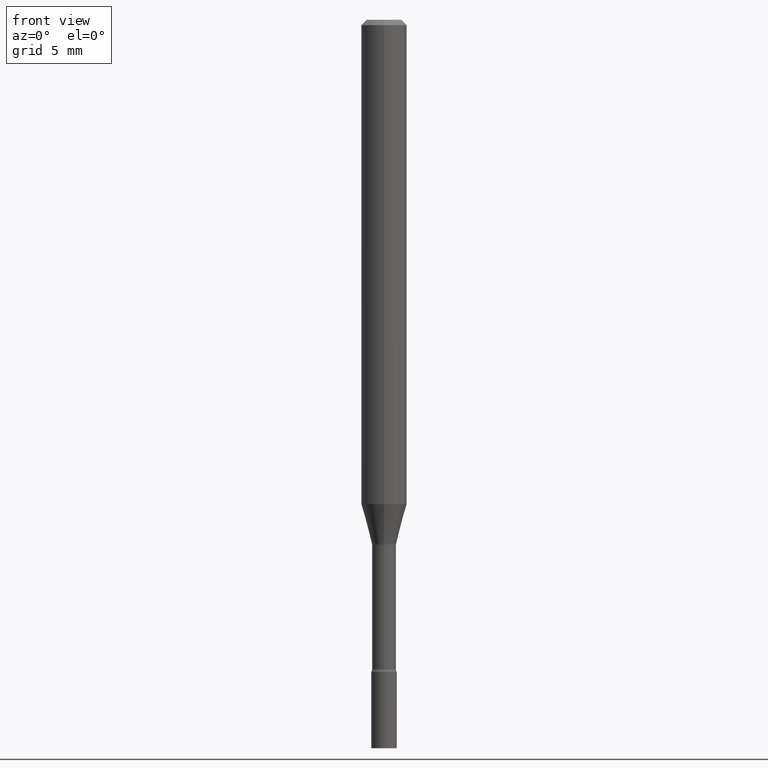
[diagram: clean part render]
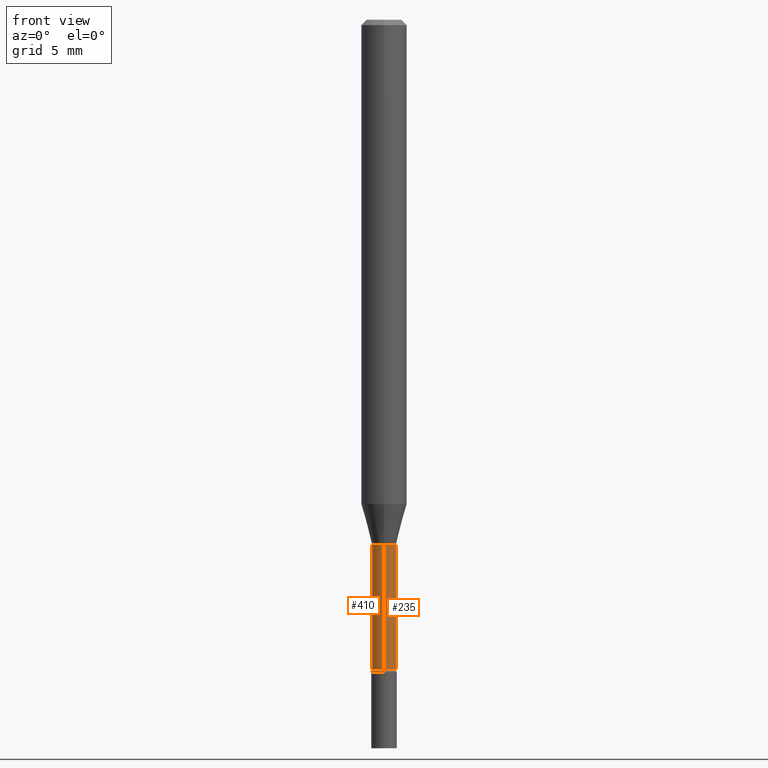
[diagram: same view with one multi-face feature highlighted, each face labeled with its STEP entity id]
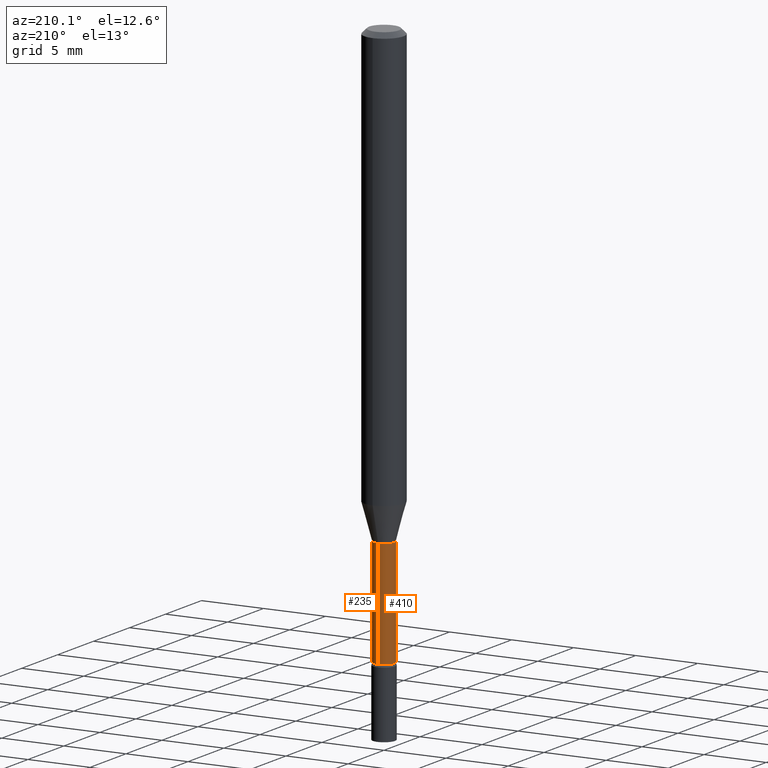
[diagram: same view with one multi-face feature highlighted, each face labeled with its STEP entity id]
A machine part, front view. The highlighted faces form ONE feature: a constant-radius fillet chain: 2 tangent blend faces with common blend radius 0.8357 mm. The faces share edges in the B-rep.
A second angle (auxiliary view) of the same feature is appended — it is thin or edge-on in the first view.
Their STEP definitions:
[1] entity #235 (Cylinder):
#29 = ORIENTED_EDGE ( 'NONE', *, *, #230, .F. ) ;
#49 = AXIS2_PLACEMENT_3D ( 'NONE', #321, #80, #242 ) ;
#76 = DIRECTION ( 'NONE',  ( -2.445497550844091636E-29, 3.491440174855477683E-15, 1.000000000000000000 ) ) ;
#80 = DIRECTION ( 'NONE',  ( -2.445497550844091636E-29, 3.491440174855477289E-15, 1.000000000000000000 ) ) ;
#89 = LINE ( 'NONE', #127, #386 ) ;
#117 = VERTEX_POINT ( 'NONE', #454 ) ;
#123 = ORIENTED_EDGE ( 'NONE', *, *, #206, .T. ) ;
#127 = CARTESIAN_POINT ( 'NONE',  ( 2.337685600650728039E-16, 0.03289999999999998481, -1.148683817527451486E-16 ) ) ;
#133 = CARTESIAN_POINT ( 'NONE',  ( -2.297394720958343216E-16, -0.03290000000000618818, -1.782345589506695971 ) ) ;
#165 = ORIENTED_EDGE ( 'NONE', *, *, #286, .F. ) ;
#168 = ORIENTED_EDGE ( 'NONE', *, *, #249, .T. ) ;
#202 = CARTESIAN_POINT ( 'NONE',  ( 3.526345811121679173E-29, -5.034568704079838244E-15, -1.441974787463810914 ) ) ;
#206 = EDGE_CURVE ( 'NONE', #268, #398, #89, .T. ) ;
#211 = AXIS2_PLACEMENT_3D ( 'NONE', #317, #401, #437 ) ;
#218 = CARTESIAN_POINT ( 'NONE',  ( 2.412292587905978021E-16, 0.03289999999999374675, -1.782345589506695971 ) ) ;
#230 = EDGE_CURVE ( 'NONE', #117, #398, #326, .T. ) ;
#235 = ADVANCED_FACE ( 'NONE', ( #518 ), #239, .T. ) ;
#239 = CYLINDRICAL_SURFACE ( 'NONE', #211, 0.03289999999999998481 ) ;
#242 = DIRECTION ( 'NONE',  ( -6.982962677686265922E-15, -1.000000000000000000, 0.000000000000000000 ) ) ;
#243 = AXIS2_PLACEMENT_3D ( 'NONE', #202, #358, #368 ) ;
#249 = EDGE_CURVE ( 'NONE', #509, #268, #273, .T. ) ;
#268 = VERTEX_POINT ( 'NONE', #218 ) ;
#273 = CIRCLE ( 'NONE', #49, 0.03289999999999996400 ) ;
#275 = CARTESIAN_POINT ( 'NONE',  ( -2.297394720958780541E-16, -0.03289999999999998481, 1.148683817527451486E-16 ) ) ;
#286 = EDGE_CURVE ( 'NONE', #509, #117, #444, .T. ) ;
#317 = CARTESIAN_POINT ( 'NONE',  ( 0.000000000000000000, 0.000000000000000000, 0.000000000000000000 ) ) ;
#321 = CARTESIAN_POINT ( 'NONE',  ( 4.358721773896393938E-29, -6.222952996680146850E-15, -1.782345589506695971 ) ) ;
#326 = CIRCLE ( 'NONE', #243, 0.03289999999999999869 ) ;
#358 = DIRECTION ( 'NONE',  ( -2.445497550844091636E-29, 3.491440174855477289E-15, 1.000000000000000000 ) ) ;
#368 = DIRECTION ( 'NONE',  ( -6.982962677686265133E-15, -1.000000000000000000, 0.000000000000000000 ) ) ;
#386 = VECTOR ( 'NONE', #76, 39.37007874015748143 ) ;
#398 = VERTEX_POINT ( 'NONE', #479 ) ;
#400 = DIRECTION ( 'NONE',  ( -2.445497550844091636E-29, 3.491440174855477683E-15, 1.000000000000000000 ) ) ;
#401 = DIRECTION ( 'NONE',  ( -2.445497550844091636E-29, 3.491440174855477289E-15, 1.000000000000000000 ) ) ;
#424 = EDGE_LOOP ( 'NONE', ( #168, #123, #29, #165 ) ) ;
#437 = DIRECTION ( 'NONE',  ( -6.982962677686265922E-15, -1.000000000000000000, 3.491440174855477289E-15 ) ) ;
#444 = LINE ( 'NONE', #275, #508 ) ;
#454 = CARTESIAN_POINT ( 'NONE',  ( -2.297394720958428512E-16, -0.03290000000000502939, -1.441974787463810914 ) ) ;
#479 = CARTESIAN_POINT ( 'NONE',  ( 2.337685600651165364E-16, 0.03289999999999496105, -1.441974787463810914 ) ) ;
#508 = VECTOR ( 'NONE', #400, 39.37007874015748143 ) ;
#509 = VERTEX_POINT ( 'NONE', #133 ) ;
#518 = FACE_OUTER_BOUND ( 'NONE', #424, .T. ) ;
[2] entity #410 (Cylinder):
#51 = ORIENTED_EDGE ( 'NONE', *, *, #206, .F. ) ;
#70 = ORIENTED_EDGE ( 'NONE', *, *, #492, .F. ) ;
#76 = DIRECTION ( 'NONE',  ( -2.445497550844091636E-29, 3.491440174855477683E-15, 1.000000000000000000 ) ) ;
#89 = LINE ( 'NONE', #127, #386 ) ;
#117 = VERTEX_POINT ( 'NONE', #454 ) ;
#127 = CARTESIAN_POINT ( 'NONE',  ( 2.337685600650728039E-16, 0.03289999999999998481, -1.148683817527451486E-16 ) ) ;
#133 = CARTESIAN_POINT ( 'NONE',  ( -2.297394720958343216E-16, -0.03290000000000618818, -1.782345589506695971 ) ) ;
#137 = DIRECTION ( 'NONE',  ( -2.445497550844091636E-29, 3.491440174855477289E-15, 1.000000000000000000 ) ) ;
#200 = CARTESIAN_POINT ( 'NONE',  ( 0.000000000000000000, 0.000000000000000000, 0.000000000000000000 ) ) ;
#206 = EDGE_CURVE ( 'NONE', #268, #398, #89, .T. ) ;
#218 = CARTESIAN_POINT ( 'NONE',  ( 2.412292587905978021E-16, 0.03289999999999374675, -1.782345589506695971 ) ) ;
#232 = DIRECTION ( 'NONE',  ( -6.982962677686265922E-15, -1.000000000000000000, 0.000000000000000000 ) ) ;
#236 = CIRCLE ( 'NONE', #266, 0.03289999999999996400 ) ;
#260 = EDGE_LOOP ( 'NONE', ( #51, #428, #312, #70 ) ) ;
#266 = AXIS2_PLACEMENT_3D ( 'NONE', #355, #427, #232 ) ;
#268 = VERTEX_POINT ( 'NONE', #218 ) ;
#272 = FACE_OUTER_BOUND ( 'NONE', #260, .T. ) ;
#275 = CARTESIAN_POINT ( 'NONE',  ( -2.297394720958780541E-16, -0.03289999999999998481, 1.148683817527451486E-16 ) ) ;
#286 = EDGE_CURVE ( 'NONE', #509, #117, #444, .T. ) ;
#312 = ORIENTED_EDGE ( 'NONE', *, *, #286, .T. ) ;
#351 = AXIS2_PLACEMENT_3D ( 'NONE', #374, #137, #405 ) ;
#355 = CARTESIAN_POINT ( 'NONE',  ( 4.358721773896393938E-29, -6.222952996680146850E-15, -1.782345589506695971 ) ) ;
#356 = DIRECTION ( 'NONE',  ( -2.445497550844091636E-29, 3.491440174855477289E-15, 1.000000000000000000 ) ) ;
#374 = CARTESIAN_POINT ( 'NONE',  ( 3.526345811121679173E-29, -5.034568704079838244E-15, -1.441974787463810914 ) ) ;
#386 = VECTOR ( 'NONE', #76, 39.37007874015748143 ) ;
#398 = VERTEX_POINT ( 'NONE', #479 ) ;
#400 = DIRECTION ( 'NONE',  ( -2.445497550844091636E-29, 3.491440174855477683E-15, 1.000000000000000000 ) ) ;
#405 = DIRECTION ( 'NONE',  ( -6.982962677686265133E-15, -1.000000000000000000, 0.000000000000000000 ) ) ;
#410 = ADVANCED_FACE ( 'NONE', ( #272 ), #431, .T. ) ;
#415 = CIRCLE ( 'NONE', #351, 0.03289999999999999869 ) ;
#427 = DIRECTION ( 'NONE',  ( -2.445497550844091636E-29, 3.491440174855477289E-15, 1.000000000000000000 ) ) ;
#428 = ORIENTED_EDGE ( 'NONE', *, *, #430, .T. ) ;
#430 = EDGE_CURVE ( 'NONE', #268, #509, #236, .T. ) ;
#431 = CYLINDRICAL_SURFACE ( 'NONE', #452, 0.03289999999999998481 ) ;
#444 = LINE ( 'NONE', #275, #508 ) ;
#452 = AXIS2_PLACEMENT_3D ( 'NONE', #200, #356, #515 ) ;
#454 = CARTESIAN_POINT ( 'NONE',  ( -2.297394720958428512E-16, -0.03290000000000502939, -1.441974787463810914 ) ) ;
#479 = CARTESIAN_POINT ( 'NONE',  ( 2.337685600651165364E-16, 0.03289999999999496105, -1.441974787463810914 ) ) ;
#492 = EDGE_CURVE ( 'NONE', #398, #117, #415, .T. ) ;
#508 = VECTOR ( 'NONE', #400, 39.37007874015748143 ) ;
#509 = VERTEX_POINT ( 'NONE', #133 ) ;
#515 = DIRECTION ( 'NONE',  ( -6.982962677686265922E-15, -1.000000000000000000, 3.491440174855477289E-15 ) ) ;